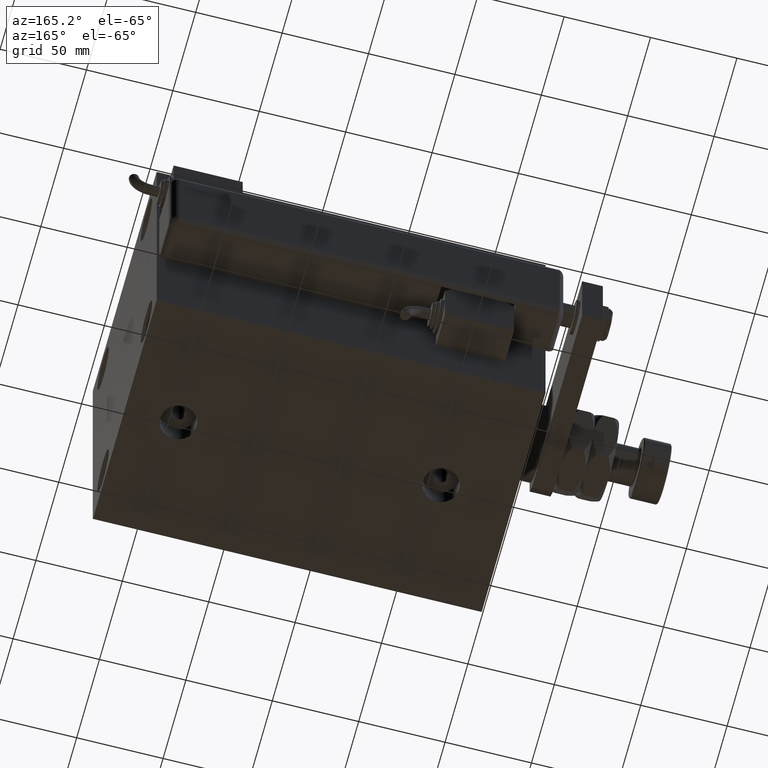
[diagram: clean part render]
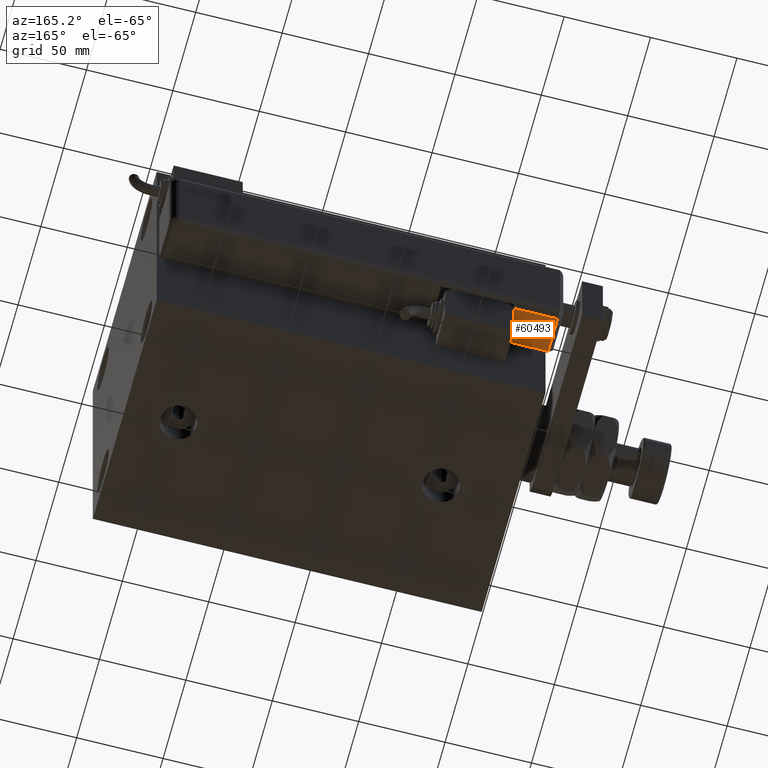
[diagram: same view with one face highlighted and labeled with its STEP entity id]
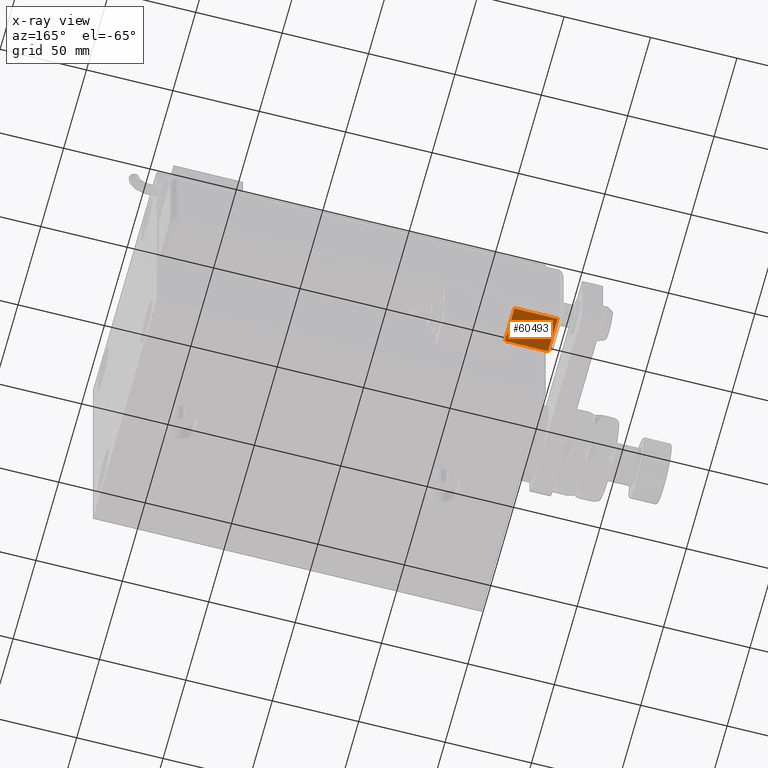
[diagram: x-ray of the same camera — body ghosted, the highlighted face saturated]
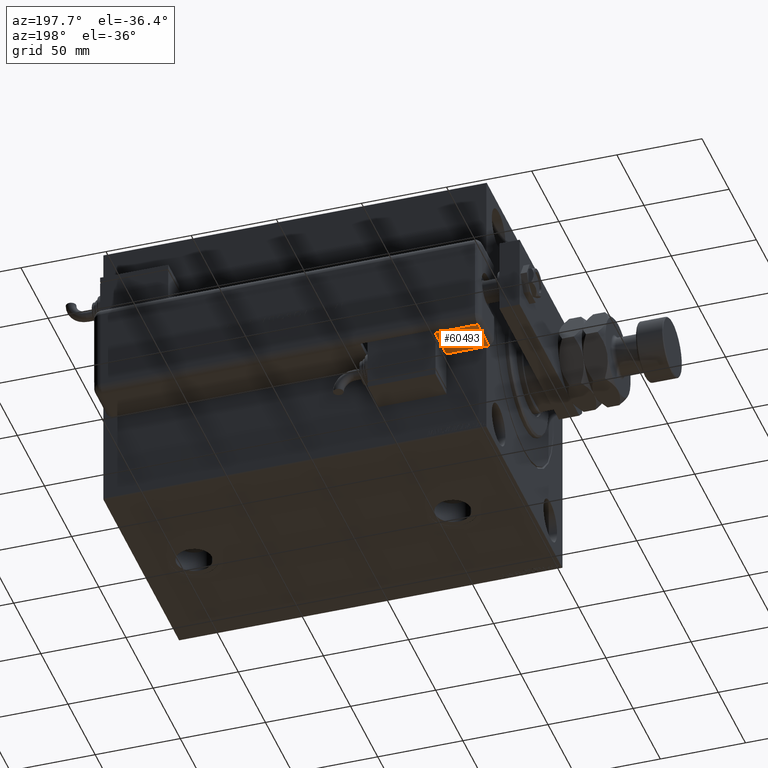
[diagram: same view with one face highlighted and labeled with its STEP entity id]
A machine part, auxiliary view. The second image highlights one B-rep face of the part: STEP entity #60493.
The next image is the same camera in x-ray: the body ghosted, the highlighted face saturated — about 0% of this face is hidden behind the body in this view.
A second angle (auxiliary view) of the same face is appended — the face is thin or edge-on in the first view.
In plain terms, the highlighted planar face has unit normal (0, 0, 1).
Its self-contained STEP definition (entity closure, byte-faithful):
#2111 = VERTEX_POINT ( 'NONE', #7429 ) ;
#4236 = CARTESIAN_POINT ( 'NONE',  ( -28.99999999999999645, -9.421223957302265857E-15, 200.0000000000000000 ) ) ;
#4829 = VERTEX_POINT ( 'NONE', #36073 ) ;
#5599 = VECTOR ( 'NONE', #30277, 1000.000000000000000 ) ;
#5680 = LINE ( 'NONE', #20289, #56597 ) ;
#5956 = DIRECTION ( 'NONE',  ( -0.000000000000000000, 0.000000000000000000, -1.000000000000000000 ) ) ;
#7429 = CARTESIAN_POINT ( 'NONE',  ( -28.99999999999999645, 20.79999999999998295, 225.0000000000000000 ) ) ;
#9292 = LINE ( 'NONE', #44241, #24061 ) ;
#9464 = EDGE_CURVE ( 'NONE', #2111, #49413, #9292, .T. ) ;
#16149 = DIRECTION ( 'NONE',  ( -0.000000000000000000, 1.000000000000000000, -0.000000000000000000 ) ) ;
#16364 = VERTEX_POINT ( 'NONE', #4236 ) ;
#17101 = ORIENTED_EDGE ( 'NONE', *, *, #56666, .F. ) ;
#20070 = AXIS2_PLACEMENT_3D ( 'NONE', #50443, #20867, #5956 ) ;
#20289 = CARTESIAN_POINT ( 'NONE',  ( -28.99999999999999645, 22.99999999999998934, 200.0000000000000000 ) ) ;
#20867 = DIRECTION ( 'NONE',  ( 1.000000000000000000, 0.000000000000000000, -0.000000000000000000 ) ) ;
#23292 = ORIENTED_EDGE ( 'NONE', *, *, #50956, .F. ) ;
#24061 = VECTOR ( 'NONE', #33771, 1000.000000000000000 ) ;
#30277 = DIRECTION ( 'NONE',  ( -0.000000000000000000, -0.000000000000000000, -1.000000000000000000 ) ) ;
#31946 = LINE ( 'NONE', #56419, #50731 ) ;
#33771 = DIRECTION ( 'NONE',  ( 0.000000000000000000, -1.000000000000000000, 0.000000000000000000 ) ) ;
#35557 = EDGE_LOOP ( 'NONE', ( #38600, #17101, #23292, #42710 ) ) ;
#36073 = CARTESIAN_POINT ( 'NONE',  ( -28.99999999999999645, 20.79999999999998295, 200.0000000000000000 ) ) ;
#38600 = ORIENTED_EDGE ( 'NONE', *, *, #40972, .T. ) ;
#40972 = EDGE_CURVE ( 'NONE', #2111, #4829, #31946, .T. ) ;
#42710 = ORIENTED_EDGE ( 'NONE', *, *, #9464, .F. ) ;
#44241 = CARTESIAN_POINT ( 'NONE',  ( -28.99999999999999645, 25.79999999999998295, 225.0000000000000000 ) ) ;
#48173 = CARTESIAN_POINT ( 'NONE',  ( -28.99999999999999645, -9.421223957302265857E-15, 225.0000000000000000 ) ) ;
#49413 = VERTEX_POINT ( 'NONE', #48173 ) ;
#50127 = PLANE ( 'NONE',  #20070 ) ;
#50443 = CARTESIAN_POINT ( 'NONE',  ( -28.99999999999999645, 25.79999999999998295, 225.0000000000000000 ) ) ;
#50731 = VECTOR ( 'NONE', #57046, 1000.000000000000000 ) ;
#50956 = EDGE_CURVE ( 'NONE', #49413, #16364, #55610, .T. ) ;
#54899 = FACE_OUTER_BOUND ( 'NONE', #35557, .T. ) ;
#55610 = LINE ( 'NONE', #56247, #5599 ) ;
#56247 = CARTESIAN_POINT ( 'NONE',  ( -28.99999999999999645, -9.421223957302265857E-15, 225.0000000000000000 ) ) ;
#56419 = CARTESIAN_POINT ( 'NONE',  ( -28.99999999999999645, 20.79999999999998295, 225.0000000000000000 ) ) ;
#56597 = VECTOR ( 'NONE', #16149, 1000.000000000000000 ) ;
#56666 = EDGE_CURVE ( 'NONE', #16364, #4829, #5680, .T. ) ;
#57046 = DIRECTION ( 'NONE',  ( 0.000000000000000000, 0.000000000000000000, -1.000000000000000000 ) ) ;
#60493 = ADVANCED_FACE ( 'NONE', ( #54899 ), #50127, .F. ) ;